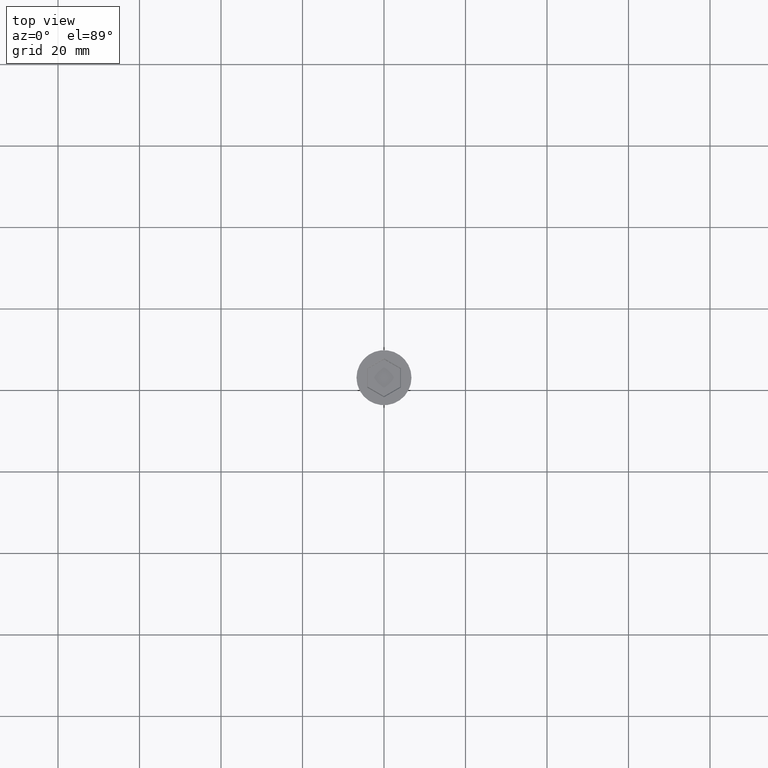
[diagram: clean part render]
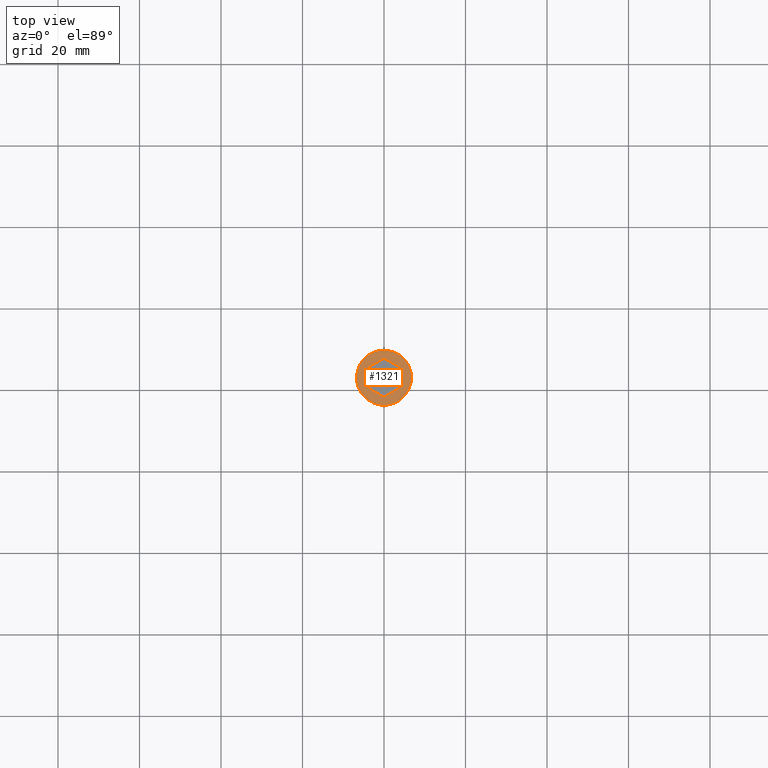
[diagram: same view with one face highlighted and labeled with its STEP entity id]
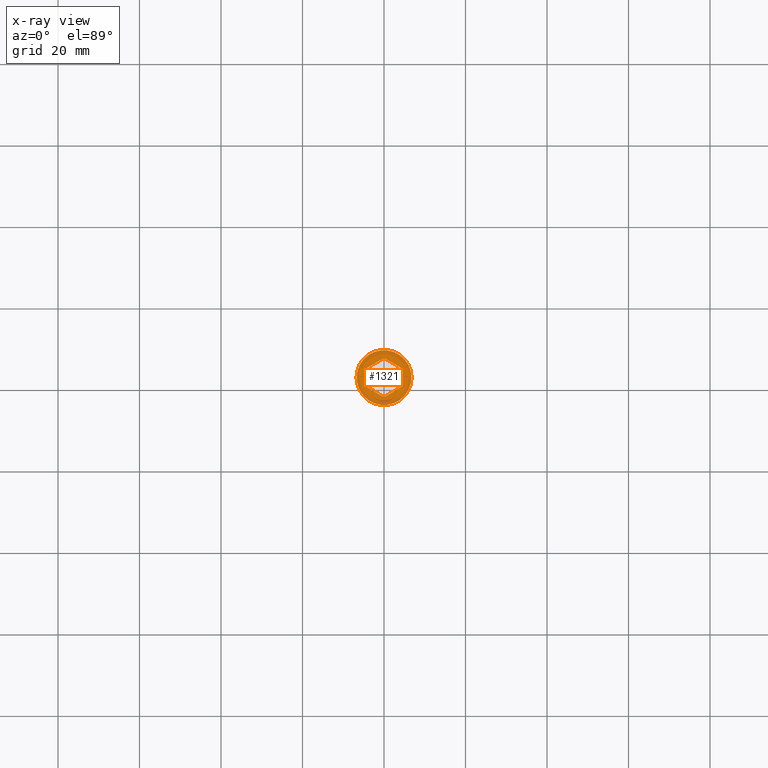
[diagram: x-ray of the same camera — body ghosted, the highlighted face saturated]
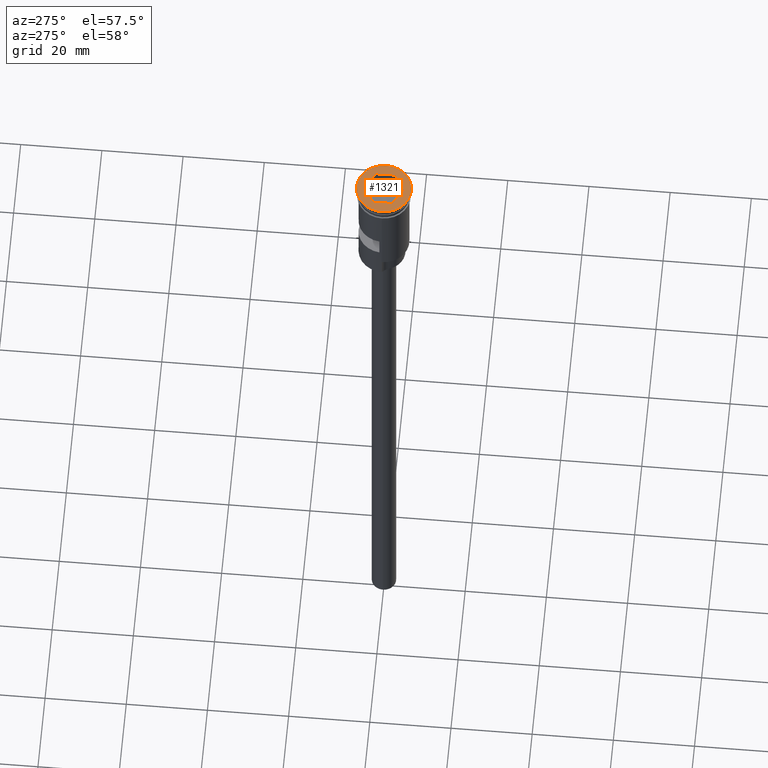
[diagram: same view with one face highlighted and labeled with its STEP entity id]
A machine part, top view. The second image highlights one B-rep face of the part: STEP entity #1321.
The next image is the same camera in x-ray: the body ghosted, the highlighted face saturated — about 0% of this face is hidden behind the body in this view.
A second angle (auxiliary view) of the same face is appended — the face is thin or edge-on in the first view.
In plain terms, the highlighted planar face has unit normal (0, -0, 1).
Its self-contained STEP definition (entity closure, byte-faithful):
#6 = CARTESIAN_POINT ( 'NONE',  ( 4.150000000000021672, 2.396003617136959640, 0.000000000000000000 ) ) ;
#66 = DIRECTION ( 'NONE',  ( 0.000000000000000000, 1.000000000000000000, 0.000000000000000000 ) ) ;
#83 = DIRECTION ( 'NONE',  ( 1.000000000000000000, 0.000000000000000000, 0.000000000000000000 ) ) ;
#117 = CIRCLE ( 'NONE', #175, 6.750000000000000000 ) ;
#128 = ORIENTED_EDGE ( 'NONE', *, *, #1338, .T. ) ;
#147 = AXIS2_PLACEMENT_3D ( 'NONE', #393, #886, #240 ) ;
#175 = AXIS2_PLACEMENT_3D ( 'NONE', #601, #456, #1451 ) ;
#183 = CARTESIAN_POINT ( 'NONE',  ( 0.000000000000000000, 0.000000000000000000, 0.000000000000000000 ) ) ;
#190 = EDGE_CURVE ( 'NONE', #849, #1200, #966, .T. ) ;
#202 = ORIENTED_EDGE ( 'NONE', *, *, #1380, .T. ) ;
#215 = DIRECTION ( 'NONE',  ( 0.8660254037844385966, 0.4999999999999999445, 0.000000000000000000 ) ) ;
#221 = DIRECTION ( 'NONE',  ( -0.8660254037844385966, 0.5000000000000002220, 0.000000000000000000 ) ) ;
#230 = EDGE_LOOP ( 'NONE', ( #828, #128, #202, #315, #671, #582 ) ) ;
#240 = DIRECTION ( 'NONE',  ( 1.000000000000000000, 0.000000000000000000, 0.000000000000000000 ) ) ;
#241 = CARTESIAN_POINT ( 'NONE',  ( -4.050000000000011369, -2.453738644055928564, 0.000000000000000000 ) ) ;
#255 = VERTEX_POINT ( 'NONE', #1218 ) ;
#303 = VECTOR ( 'NONE', #738, 1000.000000000000000 ) ;
#315 = ORIENTED_EDGE ( 'NONE', *, *, #1460, .T. ) ;
#393 = CARTESIAN_POINT ( 'NONE',  ( 0.000000000000000000, 0.000000000000000000, 0.000000000000000000 ) ) ;
#400 = CARTESIAN_POINT ( 'NONE',  ( -6.750000000000000000, 8.266365894244634333E-16, 0.000000000000000000 ) ) ;
#443 = DIRECTION ( 'NONE',  ( 0.000000000000000000, -0.000000000000000000, 1.000000000000000000 ) ) ;
#456 = DIRECTION ( 'NONE',  ( -0.000000000000000000, -0.000000000000000000, 1.000000000000000000 ) ) ;
#491 = LINE ( 'NONE', #860, #303 ) ;
#548 = FACE_BOUND ( 'NONE', #230, .T. ) ;
#566 = VECTOR ( 'NONE', #780, 1000.000000000000000 ) ;
#582 = ORIENTED_EDGE ( 'NONE', *, *, #851, .T. ) ;
#601 = CARTESIAN_POINT ( 'NONE',  ( 0.000000000000000000, 0.000000000000000000, 0.000000000000000000 ) ) ;
#671 = ORIENTED_EDGE ( 'NONE', *, *, #1023, .T. ) ;
#702 = LINE ( 'NONE', #931, #1103 ) ;
#708 = EDGE_CURVE ( 'NONE', #952, #1084, #117, .T. ) ;
#729 = CARTESIAN_POINT ( 'NONE',  ( 4.050000000000011369, 2.453738644055928564, 0.000000000000000000 ) ) ;
#738 = DIRECTION ( 'NONE',  ( -0.8660254037844387076, -0.4999999999999998890, 0.000000000000000000 ) ) ;
#746 = VERTEX_POINT ( 'NONE', #824 ) ;
#749 = CARTESIAN_POINT ( 'NONE',  ( -4.150000000000021672, -2.396003617136959640, 0.000000000000000000 ) ) ;
#780 = DIRECTION ( 'NONE',  ( -3.803328098068756548E-16, -1.000000000000000000, 0.000000000000000000 ) ) ;
#792 = PLANE ( 'NONE',  #897 ) ;
#802 = CARTESIAN_POINT ( 'NONE',  ( -4.150000000000021672, 2.280533563299020905, 0.000000000000000000 ) ) ;
#824 = CARTESIAN_POINT ( 'NONE',  ( -1.044795037522899886E-15, 4.792007234273919281, 0.000000000000000000 ) ) ;
#828 = ORIENTED_EDGE ( 'NONE', *, *, #190, .T. ) ;
#849 = VERTEX_POINT ( 'NONE', #1602 ) ;
#851 = EDGE_CURVE ( 'NONE', #1305, #849, #491, .T. ) ;
#860 = CARTESIAN_POINT ( 'NONE',  ( 0.1000000000000099976, -4.734272207354950801, 0.000000000000000000 ) ) ;
#878 = CARTESIAN_POINT ( 'NONE',  ( 6.750000000000000000, 0.000000000000000000, 0.000000000000000000 ) ) ;
#886 = DIRECTION ( 'NONE',  ( -0.000000000000000000, -0.000000000000000000, 1.000000000000000000 ) ) ;
#888 = CARTESIAN_POINT ( 'NONE',  ( 4.150000000000019895, -2.396003617136961417, 0.000000000000000000 ) ) ;
#897 = AXIS2_PLACEMENT_3D ( 'NONE', #183, #443, #83 ) ;
#931 = CARTESIAN_POINT ( 'NONE',  ( -0.1000000000000110661, 4.734272207354949913, 0.000000000000000000 ) ) ;
#934 = EDGE_LOOP ( 'NONE', ( #1025, #1443 ) ) ;
#952 = VERTEX_POINT ( 'NONE', #400 ) ;
#966 = LINE ( 'NONE', #241, #1099 ) ;
#977 = DIRECTION ( 'NONE',  ( 0.8660254037844387076, -0.4999999999999998335, 0.000000000000000000 ) ) ;
#1023 = EDGE_CURVE ( 'NONE', #1119, #1305, #1392, .T. ) ;
#1025 = ORIENTED_EDGE ( 'NONE', *, *, #1172, .T. ) ;
#1048 = LINE ( 'NONE', #729, #1469 ) ;
#1084 = VERTEX_POINT ( 'NONE', #878 ) ;
#1099 = VECTOR ( 'NONE', #221, 999.9999999999998863 ) ;
#1103 = VECTOR ( 'NONE', #215, 1000.000000000000114 ) ;
#1119 = VERTEX_POINT ( 'NONE', #6 ) ;
#1172 = EDGE_CURVE ( 'NONE', #1084, #952, #1550, .T. ) ;
#1200 = VERTEX_POINT ( 'NONE', #749 ) ;
#1218 = CARTESIAN_POINT ( 'NONE',  ( -4.150000000000021672, 2.396003617136960084, 0.000000000000000000 ) ) ;
#1303 = LINE ( 'NONE', #802, #1577 ) ;
#1305 = VERTEX_POINT ( 'NONE', #888 ) ;
#1321 = ADVANCED_FACE ( 'NONE', ( #548, #1414 ), #792, .T. ) ;
#1338 = EDGE_CURVE ( 'NONE', #1200, #255, #1303, .T. ) ;
#1380 = EDGE_CURVE ( 'NONE', #255, #746, #702, .T. ) ;
#1392 = LINE ( 'NONE', #1516, #566 ) ;
#1414 = FACE_OUTER_BOUND ( 'NONE', #934, .T. ) ;
#1443 = ORIENTED_EDGE ( 'NONE', *, *, #708, .T. ) ;
#1451 = DIRECTION ( 'NONE',  ( 1.000000000000000000, 0.000000000000000000, 0.000000000000000000 ) ) ;
#1460 = EDGE_CURVE ( 'NONE', #746, #1119, #1048, .T. ) ;
#1469 = VECTOR ( 'NONE', #977, 1000.000000000000000 ) ;
#1516 = CARTESIAN_POINT ( 'NONE',  ( 4.150000000000019895, -2.280533563299022681, 0.000000000000000000 ) ) ;
#1550 = CIRCLE ( 'NONE', #147, 6.750000000000000000 ) ;
#1577 = VECTOR ( 'NONE', #66, 1000.000000000000000 ) ;
#1602 = CARTESIAN_POINT ( 'NONE',  ( -4.614111465591404171E-16, -4.792007234273920169, 0.000000000000000000 ) ) ;